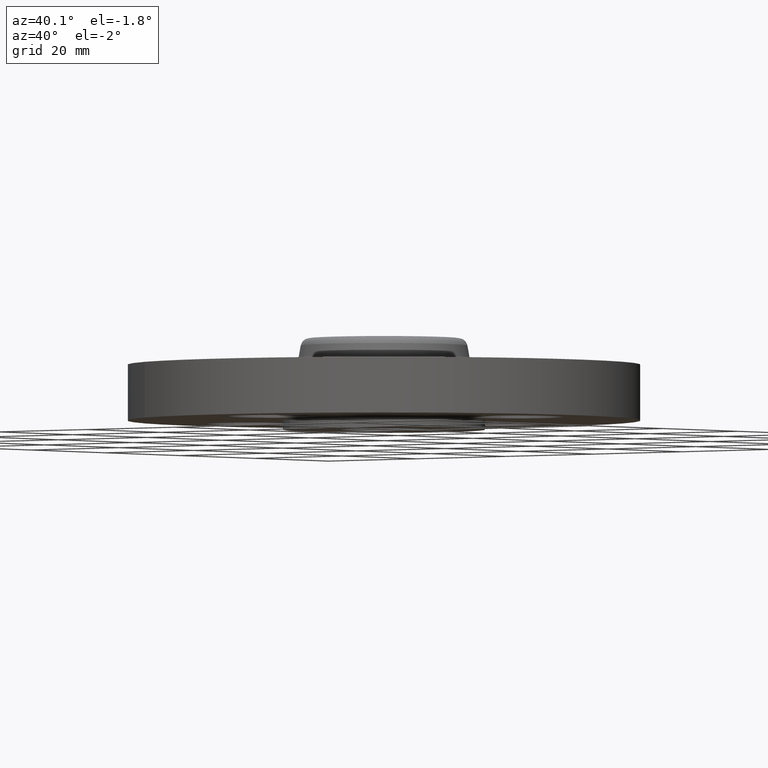
[diagram: clean part render]
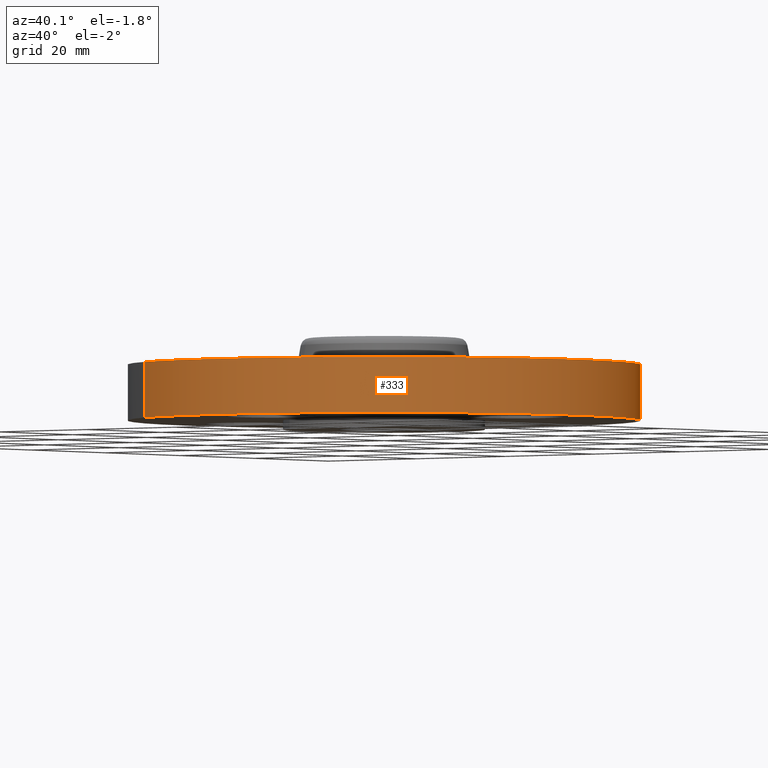
[diagram: same view with one face highlighted and labeled with its STEP entity id]
A machine part, auxiliary view. The second image highlights one B-rep face of the part: STEP entity #333.
In plain terms, the highlighted cylindrical surface (partial cylindrical patch) has radius 44.45 mm, axis along (0, 0, -1).
Its self-contained STEP definition (entity closure, byte-faithful):
#207=AXIS2_PLACEMENT_3D('Circle Axis2P3D',#205,#206,$) ;
#294=AXIS2_PLACEMENT_3D('Cylinder Axis2P3D',#291,#292,#293) ;
#324=AXIS2_PLACEMENT_3D('Circle Axis2P3D',#322,#323,$) ;
#200=CARTESIAN_POINT('Vertex',(-0.838994692561,-1.53576948331,1.39870617276E-016)) ;
#202=CARTESIAN_POINT('Vertex',(0.838994692561,1.53576948331,1.39870617276E-016)) ;
#205=CARTESIAN_POINT('Axis2P3D Location',(0.,0.,0.)) ;
#291=CARTESIAN_POINT('Axis2P3D Location',(0.,0.,0.248750000001)) ;
#296=CARTESIAN_POINT('Line Origine',(-0.838994692561,-1.53576948331,0.190000000001)) ;
#300=CARTESIAN_POINT('Vertex',(-0.838994692561,-1.53576948331,0.380000000002)) ;
#307=CARTESIAN_POINT('Vertex',(0.838994692561,1.53576948331,0.380000000002)) ;
#310=CARTESIAN_POINT('Line Origine',(0.838994692561,1.53576948331,0.190000000001)) ;
#322=CARTESIAN_POINT('Axis2P3D Location',(0.,0.,0.380000000002)) ;
#206=DIRECTION('Axis2P3D Direction',(0.,0.,-0.0393700787402)) ;
#292=DIRECTION('Axis2P3D Direction',(0.,0.,-0.0393700787402)) ;
#293=DIRECTION('Axis2P3D XDirection',(0.0188750212049,0.0345504945626,0.)) ;
#297=DIRECTION('Vector Direction',(0.,0.,-0.0393700787402)) ;
#311=DIRECTION('Vector Direction',(0.,0.,-0.0393700787402)) ;
#323=DIRECTION('Axis2P3D Direction',(0.,0.,-0.0393700787402)) ;
#298=VECTOR('Line Direction',#297,0.0393700787402) ;
#312=VECTOR('Line Direction',#311,0.0393700787402) ;
#328=ORIENTED_EDGE('',*,*,#209,.F.) ;
#329=ORIENTED_EDGE('',*,*,#314,.T.) ;
#330=ORIENTED_EDGE('',*,*,#326,.T.) ;
#331=ORIENTED_EDGE('',*,*,#302,.F.) ;
#333=ADVANCED_FACE('PartBody',(#332),#295,.T.) ;
#208=CIRCLE('generated circle',#207,1.75000000001) ;
#325=CIRCLE('generated circle',#324,1.75000000001) ;
#295=CYLINDRICAL_SURFACE('generated cylinder',#294,1.75000000001) ;
#209=EDGE_CURVE('',#203,#201,#208,.T.) ;
#302=EDGE_CURVE('',#201,#301,#299,.F.) ;
#314=EDGE_CURVE('',#203,#308,#313,.F.) ;
#326=EDGE_CURVE('',#308,#301,#325,.T.) ;
#327=EDGE_LOOP('',(#328,#329,#330,#331)) ;
#332=FACE_OUTER_BOUND('',#327,.T.) ;
#299=LINE('Line',#296,#298) ;
#313=LINE('Line',#310,#312) ;
#201=VERTEX_POINT('',#200) ;
#203=VERTEX_POINT('',#202) ;
#301=VERTEX_POINT('',#300) ;
#308=VERTEX_POINT('',#307) ;